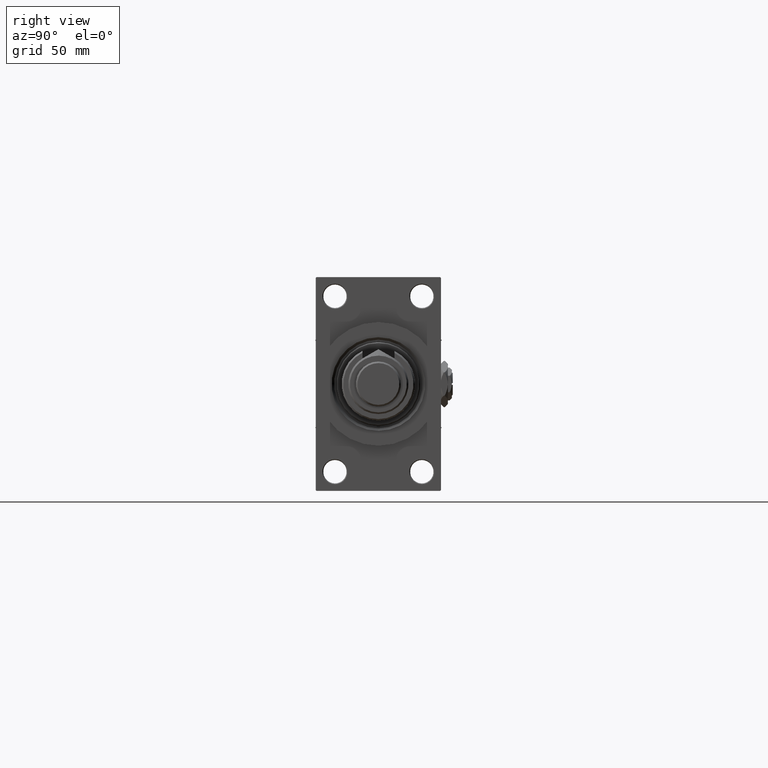
[diagram: clean part render]
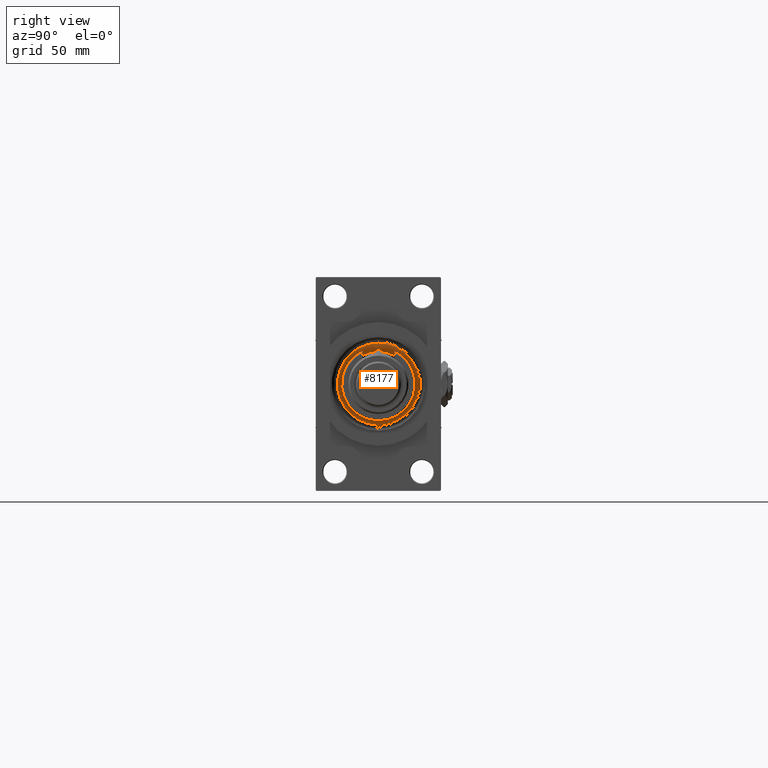
[diagram: same view with one face highlighted and labeled with its STEP entity id]
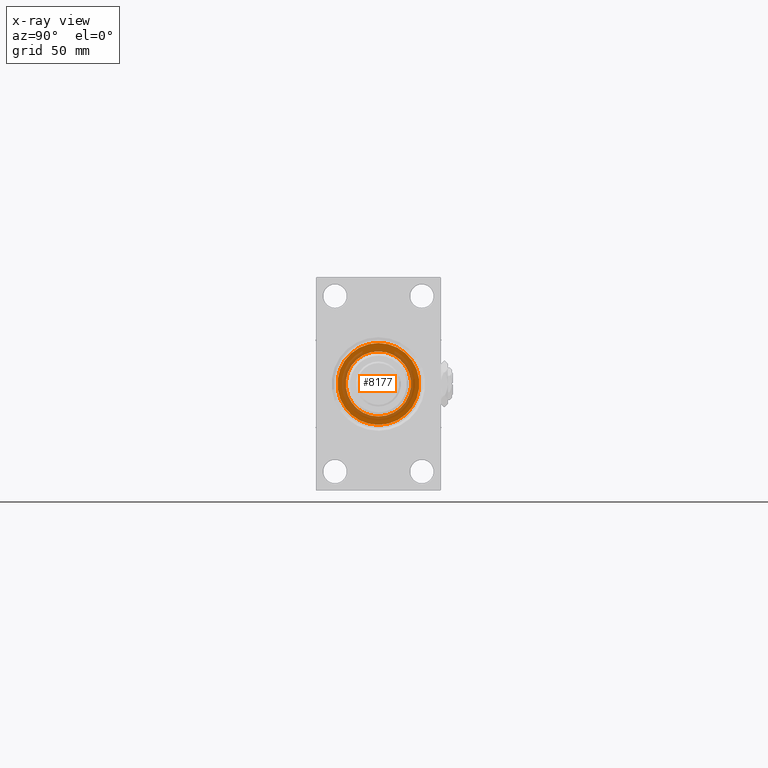
[diagram: x-ray of the same camera — body ghosted, the highlighted face saturated]
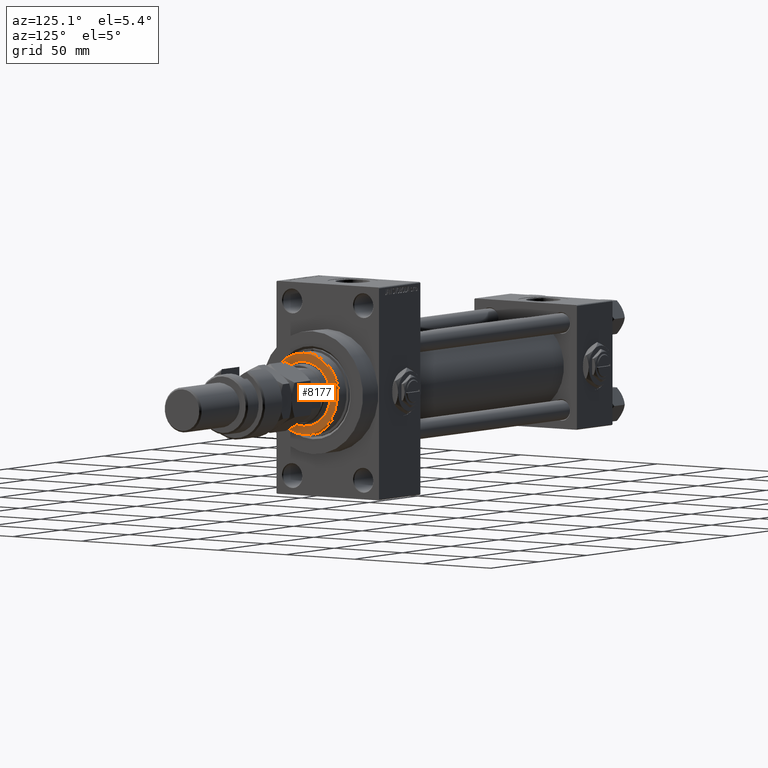
[diagram: same view with one face highlighted and labeled with its STEP entity id]
A machine part, right view. The second image highlights one B-rep face of the part: STEP entity #8177.
The next image is the same camera in x-ray: the body ghosted, the highlighted face saturated — about 40% of this face is hidden behind the body in this view.
A second angle (auxiliary view) of the same face is appended — the face is thin or edge-on in the first view.
In plain terms, the highlighted planar face has unit normal (1, -0, -0).
Its self-contained STEP definition (entity closure, byte-faithful):
#1301 = DIRECTION ( 'NONE',  ( 1.000000000000000000, 0.000000000000000000, 0.000000000000000000 ) ) ;
#1393 = CIRCLE ( 'NONE', #36993, 24.50000000000001066 ) ;
#2379 = CARTESIAN_POINT ( 'NONE',  ( -19.50000000000000000, 2.388061258337338939E-15, 52.25999999999999801 ) ) ;
#2739 = DIRECTION ( 'NONE',  ( 0.000000000000000000, 0.000000000000000000, 1.000000000000000000 ) ) ;
#3542 = AXIS2_PLACEMENT_3D ( 'NONE', #26885, #2739, #18939 ) ;
#6925 = ORIENTED_EDGE ( 'NONE', *, *, #17011, .F. ) ;
#8088 = EDGE_CURVE ( 'NONE', #25675, #42102, #17940, .T. ) ;
#8177 = ADVANCED_FACE ( 'NONE', ( #38838, #30882 ), #10689, .T. ) ;
#8473 = DIRECTION ( 'NONE',  ( 0.000000000000000000, 0.000000000000000000, 1.000000000000000000 ) ) ;
#10656 = CARTESIAN_POINT ( 'NONE',  ( 19.50000000000000000, 0.000000000000000000, 52.25999999999999801 ) ) ;
#10689 = PLANE ( 'NONE',  #3542 ) ;
#12497 = EDGE_LOOP ( 'NONE', ( #33048, #6925 ) ) ;
#17011 = EDGE_CURVE ( 'NONE', #28491, #38796, #32711, .T. ) ;
#17940 = CIRCLE ( 'NONE', #45070, 24.50000000000001066 ) ;
#18170 = EDGE_LOOP ( 'NONE', ( #26586, #38459 ) ) ;
#18257 = AXIS2_PLACEMENT_3D ( 'NONE', #47314, #19211, #51038 ) ;
#18939 = DIRECTION ( 'NONE',  ( 1.000000000000000000, 0.000000000000000000, -0.000000000000000000 ) ) ;
#19211 = DIRECTION ( 'NONE',  ( 0.000000000000000000, 0.000000000000000000, 1.000000000000000000 ) ) ;
#21826 = EDGE_CURVE ( 'NONE', #42102, #25675, #1393, .T. ) ;
#22304 = EDGE_CURVE ( 'NONE', #38796, #28491, #47988, .T. ) ;
#25121 = AXIS2_PLACEMENT_3D ( 'NONE', #29196, #25467, #1301 ) ;
#25467 = DIRECTION ( 'NONE',  ( 0.000000000000000000, 0.000000000000000000, 1.000000000000000000 ) ) ;
#25675 = VERTEX_POINT ( 'NONE', #42343 ) ;
#26363 = DIRECTION ( 'NONE',  ( 0.000000000000000000, 0.000000000000000000, 1.000000000000000000 ) ) ;
#26586 = ORIENTED_EDGE ( 'NONE', *, *, #21826, .T. ) ;
#26885 = CARTESIAN_POINT ( 'NONE',  ( 0.000000000000000000, 0.000000000000000000, 52.25999999999999801 ) ) ;
#26935 = CARTESIAN_POINT ( 'NONE',  ( -24.50000000000001066, 0.000000000000000000, 52.25999999999999801 ) ) ;
#28491 = VERTEX_POINT ( 'NONE', #2379 ) ;
#29196 = CARTESIAN_POINT ( 'NONE',  ( 0.000000000000000000, 0.000000000000000000, 52.25999999999999801 ) ) ;
#30882 = FACE_OUTER_BOUND ( 'NONE', #18170, .T. ) ;
#32711 = CIRCLE ( 'NONE', #18257, 19.50000000000000000 ) ;
#33048 = ORIENTED_EDGE ( 'NONE', *, *, #22304, .F. ) ;
#34088 = CARTESIAN_POINT ( 'NONE',  ( 0.000000000000000000, 0.000000000000000000, 52.25999999999999801 ) ) ;
#36993 = AXIS2_PLACEMENT_3D ( 'NONE', #37131, #8473, #40590 ) ;
#37131 = CARTESIAN_POINT ( 'NONE',  ( 0.000000000000000000, 0.000000000000000000, 52.25999999999999801 ) ) ;
#38459 = ORIENTED_EDGE ( 'NONE', *, *, #8088, .T. ) ;
#38796 = VERTEX_POINT ( 'NONE', #10656 ) ;
#38838 = FACE_BOUND ( 'NONE', #12497, .T. ) ;
#40590 = DIRECTION ( 'NONE',  ( 1.000000000000000000, 0.000000000000000000, 0.000000000000000000 ) ) ;
#42102 = VERTEX_POINT ( 'NONE', #26935 ) ;
#42343 = CARTESIAN_POINT ( 'NONE',  ( 24.50000000000001066, 3.031000827889700044E-15, 52.25999999999999801 ) ) ;
#45070 = AXIS2_PLACEMENT_3D ( 'NONE', #34088, #26363, #50245 ) ;
#47314 = CARTESIAN_POINT ( 'NONE',  ( 0.000000000000000000, 0.000000000000000000, 52.25999999999999801 ) ) ;
#47988 = CIRCLE ( 'NONE', #25121, 19.50000000000000000 ) ;
#50245 = DIRECTION ( 'NONE',  ( 1.000000000000000000, 0.000000000000000000, 0.000000000000000000 ) ) ;
#51038 = DIRECTION ( 'NONE',  ( 1.000000000000000000, 0.000000000000000000, 0.000000000000000000 ) ) ;